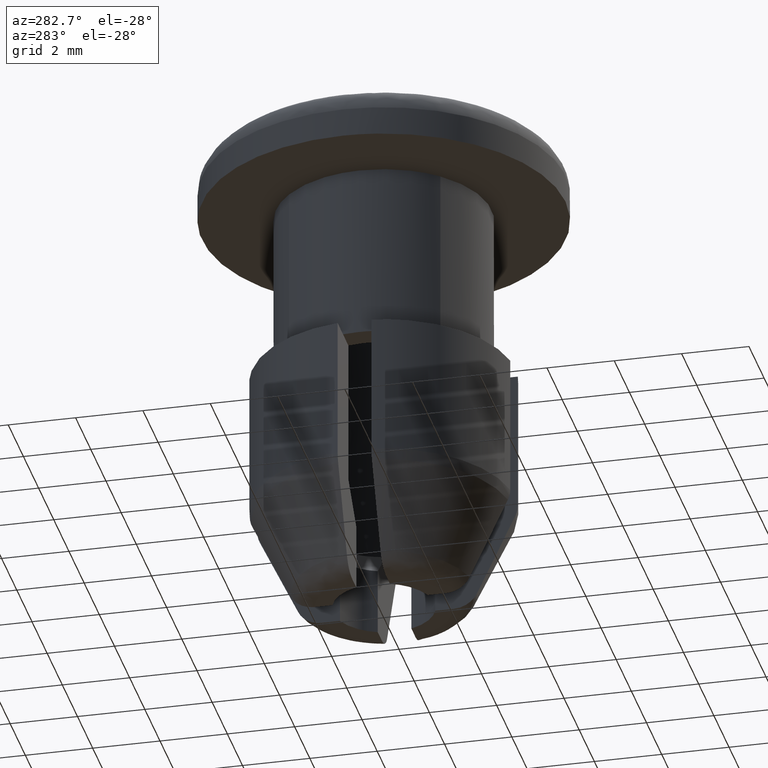
[diagram: clean part render]
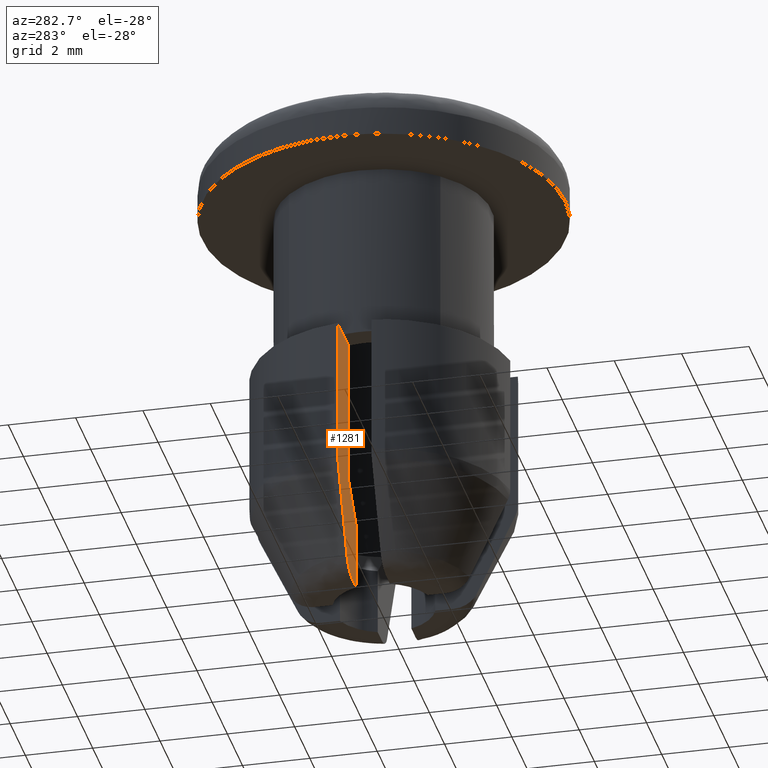
[diagram: same view with one face highlighted and labeled with its STEP entity id]
A machine part, auxiliary view. The second image highlights one B-rep face of the part: STEP entity #1281.
In plain terms, the highlighted face is a freeform B-spline surface patch.
Its self-contained STEP definition (entity closure, byte-faithful):
#697=CARTESIAN_POINT('',(-3.160696125855820,0.500000000000007,-7.299999999999860));
#698=VERTEX_POINT('',#697);
#1004=CARTESIAN_POINT('',(-2.449489742783175,0.500000000000007,-7.299999999999860));
#1005=VERTEX_POINT('',#1004);
#1019=CARTESIAN_POINT('',(-2.449489742783175,0.500000000000007,-11.700363376784519));
#1020=VERTEX_POINT('',#1019);
#1021=CARTESIAN_POINT('',(-2.449489742783175,0.500000000000007,-11.700363376784519));
#1022=CARTESIAN_POINT('',(-2.449489742783175,0.500000000000007,-7.299999999999860));
#1023=QUASI_UNIFORM_CURVE('',1,(#1021,#1022),.UNSPECIFIED.,.F.,.U.);
#1024=EDGE_CURVE('',#1020,#1005,#1023,.T.);
#1182=CARTESIAN_POINT('',(-3.160696125855820,0.500000000000007,-7.299999999999860));
#1183=CARTESIAN_POINT('',(-2.449489742783175,0.500000000000007,-7.299999999999860));
#1184=QUASI_UNIFORM_CURVE('',1,(#1182,#1183),.UNSPECIFIED.,.F.,.U.);
#1185=EDGE_CURVE('',#698,#1005,#1184,.T.);
#1190=CARTESIAN_POINT('',(-3.990373423326747,0.500000000000007,-6.930355237749236));
#1191=CARTESIAN_POINT('',(-3.990373423326747,0.500000000000007,-15.069945159233651));
#1192=CARTESIAN_POINT('',(-1.291656060209115,0.500000000000007,-6.930355237749236));
#1193=CARTESIAN_POINT('',(-1.291656060209115,0.500000000000007,-15.069945159233651));
#1194=B_SPLINE_SURFACE_WITH_KNOTS('',1,1,((#1190,#1192),(#1191,#1193)),.UNSPECIFIED.,.F.,.F.,.U.,(2,2),(2,2),(0.0,8.139589921484415),(0.0,2.698717363117632),.UNSPECIFIED.);
#1195=CARTESIAN_POINT('',(-3.867815921162735,0.500000000000007,-7.299999999999900));
#1196=VERTEX_POINT('',#1195);
#1197=CARTESIAN_POINT('',(-3.867815921162770,0.500000000000007,-11.533899999999999));
#1198=VERTEX_POINT('',#1197);
#1199=CARTESIAN_POINT('',(-3.867815921162735,0.500000000000007,-7.299999999999900));
#1200=CARTESIAN_POINT('',(-3.867815921162770,0.500000000000007,-11.533899999999999));
#1201=QUASI_UNIFORM_CURVE('',1,(#1199,#1200),.UNSPECIFIED.,.F.,.U.);
#1202=EDGE_CURVE('',#1196,#1198,#1201,.T.);
#1203=ORIENTED_EDGE('',*,*,#1202,.T.);
#1204=CARTESIAN_POINT('',(-3.796920079485480,0.500000000000007,-11.850999999999880));
#1205=VERTEX_POINT('',#1204);
#1206=CARTESIAN_POINT('',(-3.867815921162740,0.500000000000007,-11.533899999999999));
#1207=CARTESIAN_POINT('',(-3.867824344432530,0.500000000000007,-11.561114186784600));
#1208=CARTESIAN_POINT('',(-3.866320624640743,0.500000000000007,-11.588617085764421));
#1209=CARTESIAN_POINT('',(-3.860304933424609,0.500000000000007,-11.643014587434990));
#1210=CARTESIAN_POINT('',(-3.855809492863874,0.500000000000007,-11.669957907586930));
#1211=CARTESIAN_POINT('',(-3.843850263149050,0.500000000000007,-11.723334861226290));
#1212=CARTESIAN_POINT('',(-3.836343647461001,0.500000000000007,-11.749855881299860));
#1213=CARTESIAN_POINT('',(-3.818650481685497,0.500000000000007,-11.801385668944880));
#1214=CARTESIAN_POINT('',(-3.808448964553530,0.500000000000007,-11.826507717649040));
#1215=CARTESIAN_POINT('',(-3.796920079485480,0.500000000000007,-11.850999999999880));
#1216=B_SPLINE_CURVE_WITH_KNOTS('',3,(#1206,#1207,#1208,#1209,#1210,#1211,#1212,#1213,#1214,#1215),.UNSPECIFIED.,.F.,.U.,(4,2,2,2,4),(0.0,0.250000000000000,0.500000000000000,0.750000000000000,1.0),.UNSPECIFIED.);
#1217=EDGE_CURVE('',#1198,#1205,#1216,.T.);
#1218=ORIENTED_EDGE('',*,*,#1217,.T.);
#1219=CARTESIAN_POINT('',(-2.659426441461010,0.500000000000007,-14.258784187287841));
#1220=VERTEX_POINT('',#1219);
#1221=CARTESIAN_POINT('',(-3.796920079485477,0.500000000000007,-11.850999999999880));
#1222=CARTESIAN_POINT('',(-3.418877154215110,0.500000000000007,-12.654124847876020));
#1223=CARTESIAN_POINT('',(-3.040186142314328,0.500000000000007,-13.456952780932040));
#1224=CARTESIAN_POINT('',(-2.659426441461010,0.500000000000007,-14.258784187287841));
#1225=QUASI_UNIFORM_CURVE('',3,(#1221,#1222,#1223,#1224),.UNSPECIFIED.,.F.,.U.);
#1226=EDGE_CURVE('',#1205,#1220,#1225,.T.);
#1227=ORIENTED_EDGE('',*,*,#1226,.T.);
#1228=CARTESIAN_POINT('',(-1.959617758645790,0.500000000000007,-14.700300000000000));
#1229=VERTEX_POINT('',#1228);
#1230=CARTESIAN_POINT('',(-2.659426441461010,0.500000000000007,-14.258784187287841));
#1231=CARTESIAN_POINT('',(-2.644259815729320,0.500000000000007,-14.291815681517910));
#1232=CARTESIAN_POINT('',(-2.626767658830552,0.500000000000007,-14.323550012450809));
#1233=CARTESIAN_POINT('',(-2.587167287802989,0.500000000000007,-14.384443873298590));
#1234=CARTESIAN_POINT('',(-2.564892510701830,0.500000000000007,-14.413777337700131));
#1235=CARTESIAN_POINT('',(-2.492201616200794,0.500000000000007,-14.496150113837750));
#1236=CARTESIAN_POINT('',(-2.435498832129688,0.500000000000007,-14.543947118549580));
#1237=CARTESIAN_POINT('',(-2.343390389883062,0.500000000000007,-14.601527285124741));
#1238=CARTESIAN_POINT('',(-2.311388330175849,0.500000000000007,-14.618515543480671));
#1239=CARTESIAN_POINT('',(-2.244763285732497,0.500000000000007,-14.648043723700431));
#1240=CARTESIAN_POINT('',(-2.210049009238707,0.500000000000007,-14.660561381392229));
#1241=CARTESIAN_POINT('',(-2.140147149059756,0.500000000000007,-14.680372387469690));
#1242=CARTESIAN_POINT('',(-2.104700392234079,0.500000000000007,-14.687798098153969));
#1243=CARTESIAN_POINT('',(-2.032830212693190,0.500000000000007,-14.697764892637959));
#1244=CARTESIAN_POINT('',(-1.996148382377306,0.500000000000007,-14.700300000000000));
#1245=CARTESIAN_POINT('',(-1.959617758645789,0.500000000000007,-14.700300000000000));
#1246=B_SPLINE_CURVE_WITH_KNOTS('',3,(#1230,#1231,#1232,#1233,#1234,#1235,#1236,#1237,#1238,#1239,#1240,#1241,#1242,#1243,#1244,#1245),.UNSPECIFIED.,.F.,.U.,(4,2,2,2,2,2,2,4),(0.0,0.125000000000001,0.250000000000002,0.500000000000003,0.625000000000002,0.750000000000002,0.875000000000001,1.0),.UNSPECIFIED.);
#1247=EDGE_CURVE('',#1220,#1229,#1246,.T.);
#1248=ORIENTED_EDGE('',*,*,#1247,.T.);
#1249=CARTESIAN_POINT('',(-1.414213562373092,0.500000000000007,-14.700300000000000));
#1250=VERTEX_POINT('',#1249);
#1251=CARTESIAN_POINT('',(-1.959617758645790,0.500000000000007,-14.700300000000000));
#1252=CARTESIAN_POINT('',(-1.414213562373092,0.500000000000007,-14.700300000000000));
#1253=QUASI_UNIFORM_CURVE('',1,(#1251,#1252),.UNSPECIFIED.,.F.,.U.);
#1254=EDGE_CURVE('',#1229,#1250,#1253,.T.);
#1255=ORIENTED_EDGE('',*,*,#1254,.T.);
#1256=CARTESIAN_POINT('',(-1.414213562373092,0.500000000000007,-12.700363376784519));
#1257=VERTEX_POINT('',#1256);
#1258=CARTESIAN_POINT('',(-1.414213562373092,0.500000000000007,-12.700363376784519));
#1259=CARTESIAN_POINT('',(-1.414213562373092,0.500000000000007,-14.700300000000000));
#1260=QUASI_UNIFORM_CURVE('',1,(#1258,#1259),.UNSPECIFIED.,.F.,.U.);
#1261=EDGE_CURVE('',#1257,#1250,#1260,.T.);
#1262=ORIENTED_EDGE('',*,*,#1261,.F.);
#1263=CARTESIAN_POINT('',(-2.449489742783176,0.500000000000007,-11.700363376784519));
#1264=CARTESIAN_POINT('',(-2.278121523698649,0.500000000000007,-11.868269254739150));
#1265=CARTESIAN_POINT('',(-2.106429639525084,0.500000000000007,-12.035834594664021));
#1266=CARTESIAN_POINT('',(-1.761720944413093,0.500000000000007,-12.369571278172000));
#1267=CARTESIAN_POINT('',(-1.588759005766173,0.500000000000007,-12.535800354586581));
#1268=CARTESIAN_POINT('',(-1.414213562373093,0.500000000000007,-12.700363376784519));
#1269=B_SPLINE_CURVE_WITH_KNOTS('',3,(#1263,#1264,#1265,#1266,#1267,#1268),.UNSPECIFIED.,.F.,.U.,(4,2,4),(0.0,0.500000000000000,1.0),.UNSPECIFIED.);
#1270=EDGE_CURVE('',#1020,#1257,#1269,.T.);
#1271=ORIENTED_EDGE('',*,*,#1270,.F.);
#1272=ORIENTED_EDGE('',*,*,#1024,.T.);
#1273=ORIENTED_EDGE('',*,*,#1185,.F.);
#1274=CARTESIAN_POINT('',(-3.867815921162735,0.500000000000007,-7.299999999999900));
#1275=CARTESIAN_POINT('',(-3.160696125855820,0.500000000000007,-7.299999999999860));
#1276=QUASI_UNIFORM_CURVE('',1,(#1274,#1275),.UNSPECIFIED.,.F.,.U.);
#1277=EDGE_CURVE('',#1196,#698,#1276,.T.);
#1278=ORIENTED_EDGE('',*,*,#1277,.F.);
#1279=EDGE_LOOP('',(#1203,#1218,#1227,#1248,#1255,#1262,#1271,#1272,#1273,#1278));
#1280=FACE_OUTER_BOUND('',#1279,.T.);
#1281=ADVANCED_FACE('',(#1280),#1194,.T.);